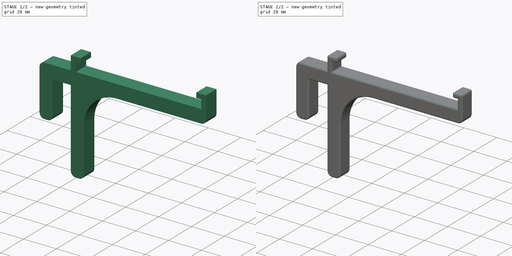
[diagram: build sequence overview — one tinted view per stage of 2, left to right]
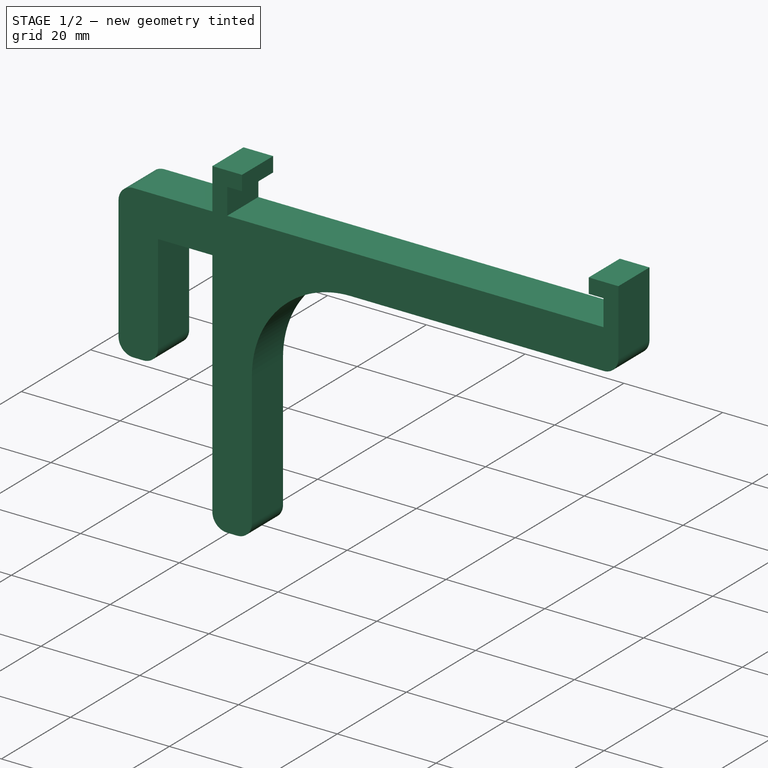
[diagram: stage 1 of 2 — iso view after this stage's code; geometry added in this stage tinted green]
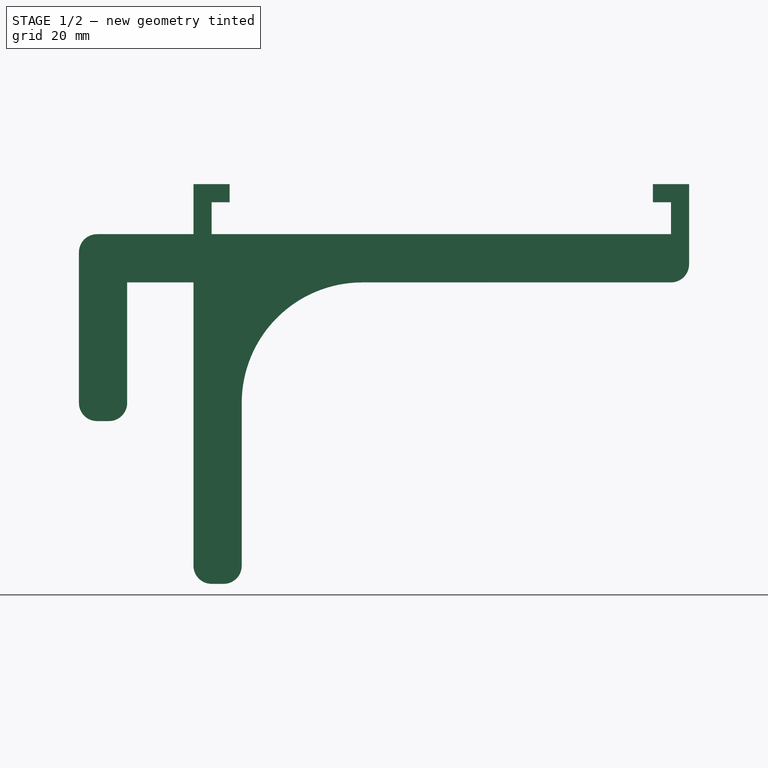
[diagram: stage 1 of 2 — front view after this stage's code; geometry added in this stage tinted green]
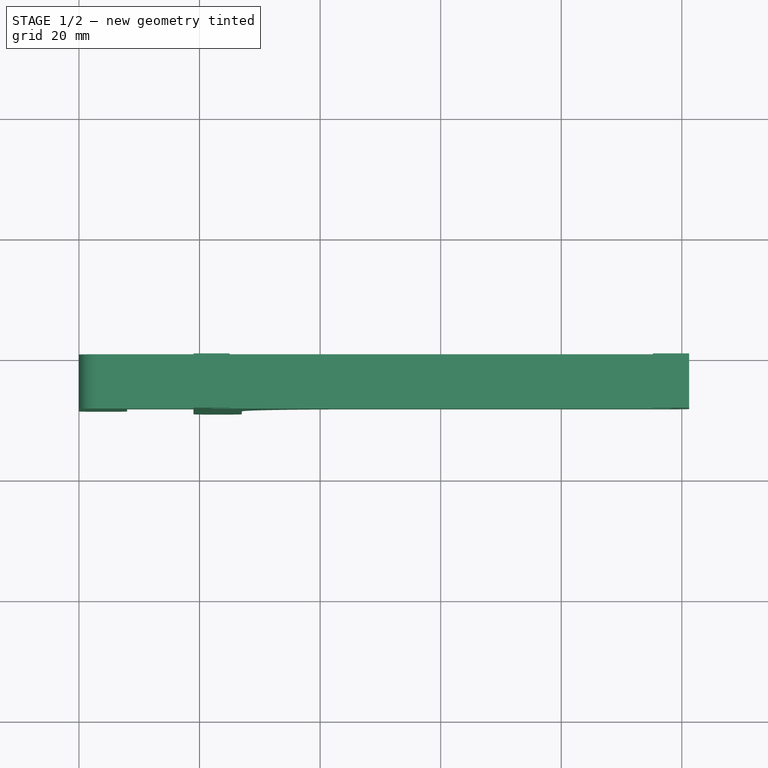
[diagram: stage 1 of 2 — top view after this stage's code; geometry added in this stage tinted green]
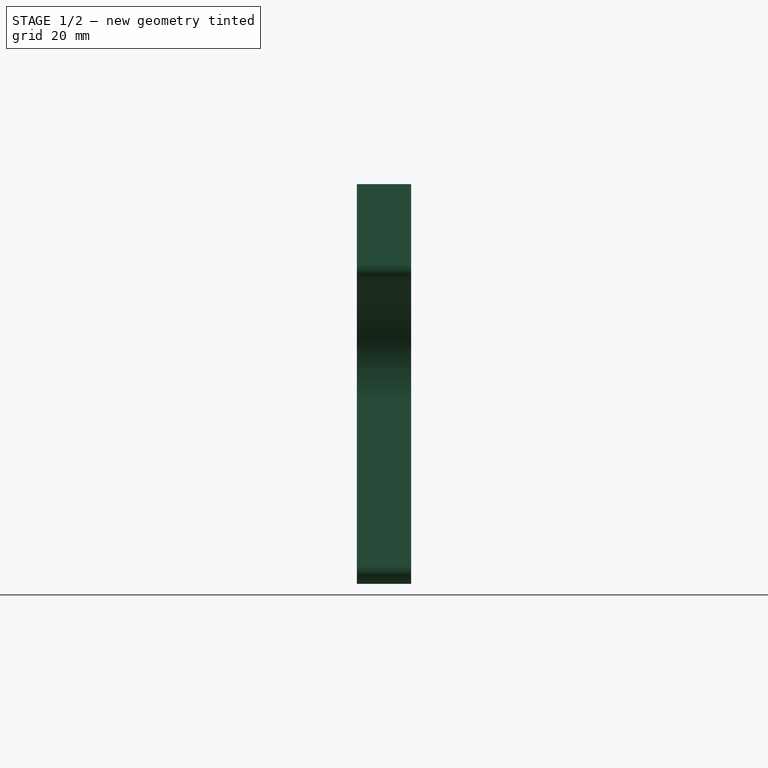
[diagram: stage 1 of 2 — right view after this stage's code; geometry added in this stage tinted green]
FCSTD DOCUMENT  (FreeCAD 0.20R29177 +426 (Git))
Label: LegoBracket1
License: All rights reserved
LicenseURL: http://en.wikipedia.org/wiki/All_rights_reserved
objects: Spreadsheet::Sheet×1, Sketcher::SketchObject×1, PartDesign::Pad×1, PartDesign::Fillet×1, PartDesign::Body×1, App::Part×1
note: 6 computed .brp shape members not serialized (recipe doc carries the construction recipe); baked Part::Feature solids carry a one-line shape summary decoded from their .brp

FEATURE [Spreadsheet::Sheet] Spreadsheet
  cells = A2=Plate height; B2(U)=5.3; A3=Depth; B3(Depth)=76.2; A4=Hook depth; B4(HookDepth)=11; A5=Offset from wall; B5(WallOffset)=0
FEATURE [Sketcher::SketchObject] Sketch
  FullyConstrained = true
  MapMode = 5
  Placement = pos=(0,0,0) rot=(1,0,0;1.5708rad)
  Support = -> [XZ_Plane001]
  expr: Constraints[35] = Spreadsheet.Depth
  expr: Constraints[37] = Spreadsheet.U
  expr: Constraints[47] = Spreadsheet.HookDepth
  expr: Constraints[86] = Spreadsheet.WallOffset
  sketch-geometry (34):
    g0: LineSegment StartX=0 StartY=-28 StartZ=0 EndX=0 EndY=-3 EndZ=0
    g1: LineSegment StartX=3 StartY=0 StartZ=0 EndX=19 EndY=0 EndZ=0
    g2: LineSegment StartX=19 StartY=0 StartZ=0 EndX=19 EndY=8.3 EndZ=0
    g3: LineSegment StartX=19 StartY=8.3 StartZ=0 EndX=25 EndY=8.3 EndZ=0
    g4: LineSegment StartX=25 StartY=8.3 StartZ=0 EndX=25 EndY=5.3 EndZ=0
    g5: LineSegment StartX=25 StartY=5.3 StartZ=0 EndX=22 EndY=5.3 EndZ=0
    g6: LineSegment StartX=22 StartY=5.3 StartZ=0 EndX=22 EndY=0 EndZ=0
    g7: LineSegment StartX=22 StartY=0 StartZ=0 EndX=98.2 EndY=0 EndZ=0
    g8: LineSegment StartX=98.2 StartY=0 StartZ=0 EndX=98.2 EndY=5.3 EndZ=0
    g9: LineSegment StartX=98.2 StartY=5.3 StartZ=0 EndX=95.2 EndY=5.3 EndZ=0
    g10: LineSegment StartX=95.2 StartY=5.3 StartZ=0 EndX=95.2 EndY=8.3 EndZ=0
    g11: LineSegment StartX=95.2 StartY=8.3 StartZ=0 EndX=101.2 EndY=8.3 EndZ=0
    g12: LineSegment StartX=101.2 StartY=8.3 StartZ=0 EndX=101.2 EndY=-5 EndZ=0
    g13: LineSegment StartX=98.2 StartY=-8 StartZ=0 EndX=47 EndY=-8 EndZ=0
    g14: LineSegment StartX=27 StartY=-28 StartZ=0 EndX=27 EndY=-55 EndZ=0
    g15: LineSegment StartX=24 StartY=-58 StartZ=0 EndX=22 EndY=-58 EndZ=0
    g16: LineSegment StartX=19 StartY=-55 StartZ=0 EndX=19 EndY=-8 EndZ=0
    g17: LineSegment StartX=19 StartY=-8 StartZ=0 EndX=8 EndY=-8 EndZ=0
    g18: LineSegment StartX=8 StartY=-8 StartZ=0 EndX=8 EndY=-28 EndZ=0
    g19: LineSegment StartX=5 StartY=-31 StartZ=0 EndX=3 EndY=-31 EndZ=0
    g20: ArcOfCircle CenterX=47 CenterY=-28 CenterZ=0 NormalX=0 NormalY=0 NormalZ=1 AngleXU=0 Radius=20 StartAngle=1.5708 EndAngle=3.14159
    g21: GeomPoint X=27 Y=-8 Z=0
    g22: GeomPoint X=101.2 Y=-8 Z=0
    g23: ArcOfCircle CenterX=3 CenterY=-28 CenterZ=0 NormalX=0 NormalY=0 NormalZ=1 AngleXU=0 Radius=3 StartAngle=3.14159 EndAngle=4.71239
    g24: GeomPoint X=0 Y=-31 Z=0
    g25: ArcOfCircle CenterX=5 CenterY=-28 CenterZ=0 NormalX=0 NormalY=0 NormalZ=1 AngleXU=0 Radius=3 StartAngle=4.71239 EndAngle=6.28319
    g26: GeomPoint X=8 Y=-31 Z=0
    g27: ArcOfCircle CenterX=22 CenterY=-55 CenterZ=0 NormalX=0 NormalY=0 NormalZ=1 AngleXU=0 Radius=3 StartAngle=3.14159 EndAngle=4.71239
    g28: GeomPoint X=19 Y=-58 Z=0
    g29: ArcOfCircle CenterX=24 CenterY=-55 CenterZ=0 NormalX=0 NormalY=0 NormalZ=1 AngleXU=0 Radius=3 StartAngle=4.71239 EndAngle=6.28319
    g30: GeomPoint X=27 Y=-58 Z=0
    g31: ArcOfCircle CenterX=98.2 CenterY=-5 CenterZ=0 NormalX=0 NormalY=0 NormalZ=1 AngleXU=0 Radius=3 StartAngle=4.71239 EndAngle=6.28319
    g32: ArcOfCircle CenterX=3 CenterY=-3 CenterZ=0 NormalX=0 NormalY=0 NormalZ=1 AngleXU=0 Radius=3 StartAngle=1.5708 EndAngle=3.14159
    g33: GeomPoint X=0 Y=0 Z=0
  constraints (87):
    c: PointOnObject(g24,g-2)
    c: Coincident(g33,g-1)
    c: Horizontal(g1)
    c: Coincident(g1,g2)
    c: Vertical(g2)
    c: Coincident(g2,g3)
    c: Horizontal(g3)
    c: Coincident(g3,g4)
    c: Vertical(g4)
    c: Coincident(g4,g5)
    c: Coincident(g5,g6)
    c: PointOnObject(g6,g-1)
    c: Vertical(g6)
    c: Coincident(g6,g7)
    c: PointOnObject(g7,g-1)
    c: Coincident(g7,g8)
    c: Vertical(g8)
    c: Coincident(g8,g9)
    c: Horizontal(g9)
    c: Coincident(g9,g10)
    c: Vertical(g10)
    c: Coincident(g10,g11)
    c: Horizontal(g11)
    c: Coincident(g11,g12)
    c: Vertical(g12)
    c: Horizontal(g13)
    c: Horizontal(g15)
    c: Vertical(g16)
    c: Coincident(g16,g17)
    c: Horizontal(g17)
    c: Coincident(g17,g18)
    c: Vertical(g18)
    c: Horizontal(g19)
    c: Horizontal(g3,g10)
    c: Horizontal(g4,g9)
    c: DistanceX(g7,g7) = 76.2
    c: Equal(g11,g3)
    c: DistanceY(g7,g8) = 5.3
    c: Horizontal(g5)
    c: DistanceY(g4,g3) = 3
    c: DistanceX(g5,g4) = 3
    c: DistanceX(g7,g11) = 3
    c: DistanceX(g28,g30) = 8
    c: DistanceX(g24,g26) = 8
    c: Horizontal(g16,g21)
    c: DistanceY(g22,g7) = 8
    c: DistanceX(g1,g6) = 3
    c: DistanceX(g17,g16) = 11
    c: DistanceY(g30,g21) = 50
    c: PointOnObject(g21,g14)
    c: PointOnObject(g21,g13)
    c: Tangent(g14,g20) = -1.5708
    c: Tangent(g13,g20) = -1.5708
    c: PointOnObject(g22,g13)
    c: PointOnObject(g22,g12)
    c: PointOnObject(g24,g0)
    c: PointOnObject(g24,g19)
    c: Tangent(g0,g23) = 1.5708
    c: Tangent(g19,g23) = 1.5708
    c: PointOnObject(g26,g19)
    c: PointOnObject(g26,g18)
    c: Tangent(g19,g25) = 1.5708
    c: Tangent(g18,g25) = 1.5708
    c: PointOnObject(g28,g16)
    c: PointOnObject(g28,g15)
    c: Tangent(g16,g27) = 1.5708
    c: Tangent(g15,g27) = 1.5708
    c: PointOnObject(g30,g15)
    c: PointOnObject(g30,g14)
    c: Tangent(g15,g29) = 1.5708
    c: Tangent(g14,g29) = 1.5708
    c: Tangent(g13,g31) = 1.5708
    c: Tangent(g12,g31) = 1.5708
    c: PointOnObject(g33,g0)
    c: PointOnObject(g33,g1)
    c: Tangent(g0,g32) = 1.5708
    c: Tangent(g1,g32) = 1.5708
    c: Radius(g23) = 3
    c: Equal(g25,g23)
    c: Equal(g29,g27)
    c: Equal(g27,g25)
    c: Equal(g23,g32)
    c: Radius(g20) = 20
    c: Equal(g32,g31)
    c: Vertical(g14)
    c: DistanceY(g26,g17) = 23
    c: DistanceX(g16,g1) = 0
FEATURE [PartDesign::Pad] Pad
  Direction = (0,-1,2e-16)
  Length = 9
  Length2 = 10
  Placement = pos=(0,0,0) rot=(1,0,0;1.5708rad)
  Profile = -> Sketch
  ReferenceAxis = -> Sketch [N_Axis]
  Type = 0
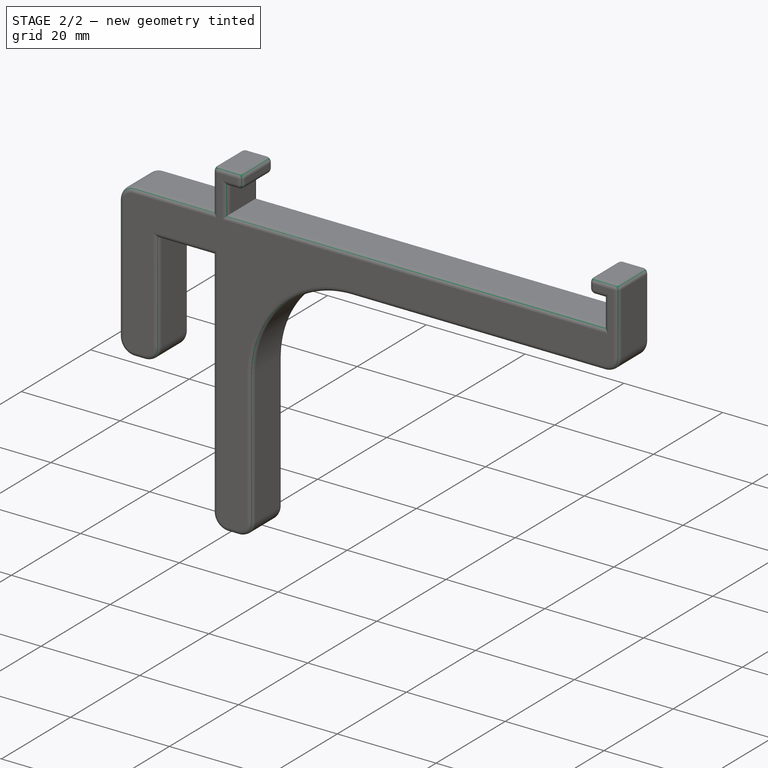
[diagram: stage 2 of 2 — iso view after this stage's code; geometry added in this stage tinted green]
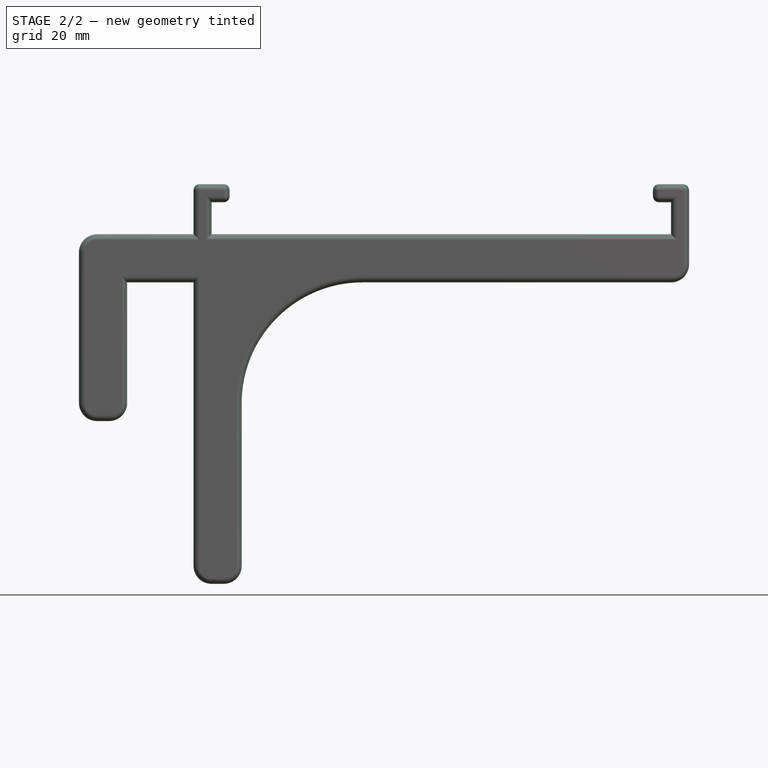
[diagram: stage 2 of 2 — front view after this stage's code; geometry added in this stage tinted green]
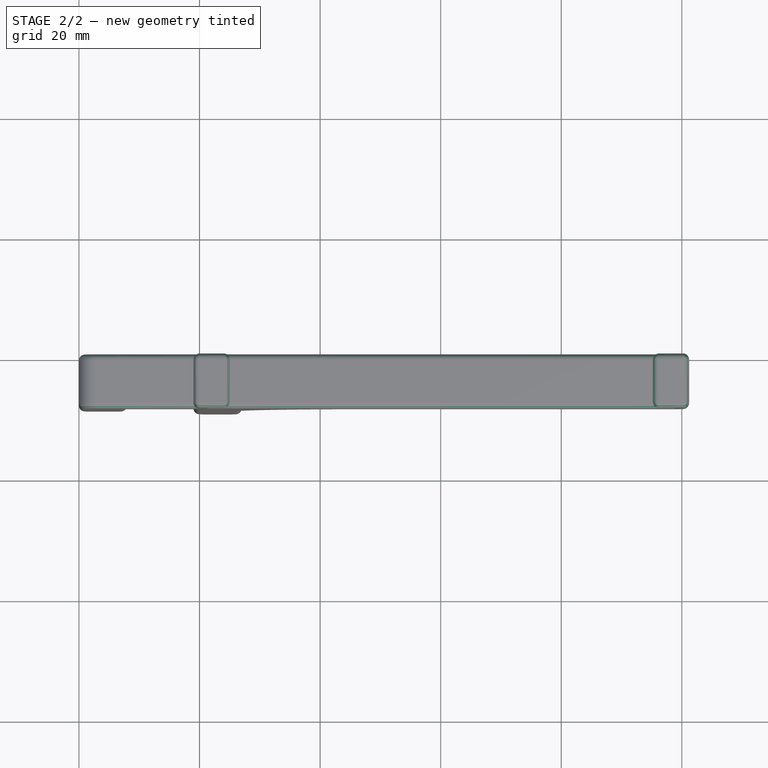
[diagram: stage 2 of 2 — top view after this stage's code; geometry added in this stage tinted green]
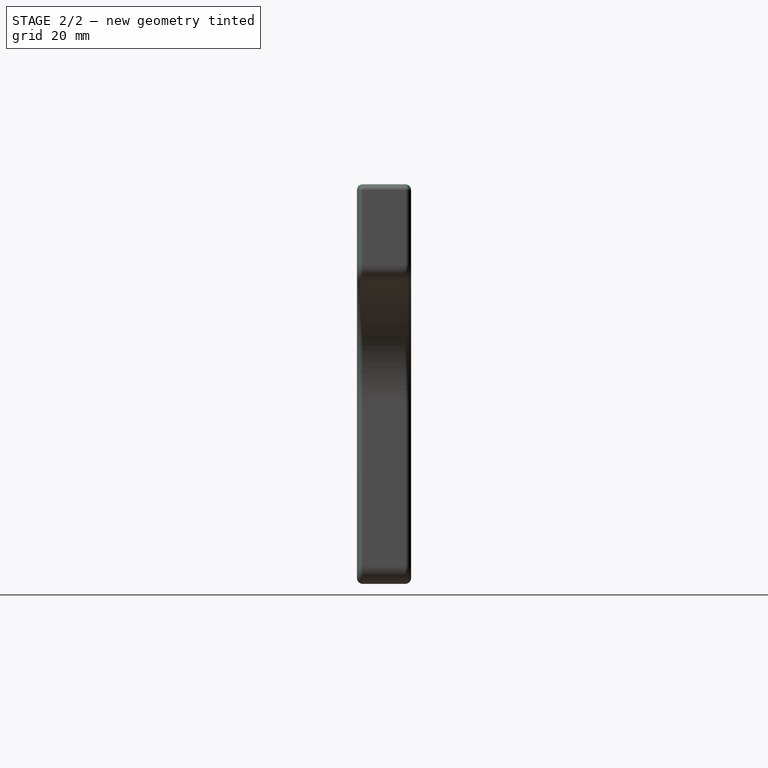
[diagram: stage 2 of 2 — right view after this stage's code; geometry added in this stage tinted green]
FEATURE [PartDesign::Fillet] Fillet
  Base = -> Pad [Face29,Face28,Edge20,Edge23,Edge17,Edge44,Edge41,Edge38]
  BaseFeature = -> Pad
  Placement = pos=(0,0,0) rot=(1,0,0;1.5708rad)
  Radius = 1
  SupportTransform = false
  UseAllEdges = false
FEATURE [PartDesign::Body] Body  label="1UBracket"
  Group = -> [Sketch,Pad,Fillet]
  Origin = -> Origin001
  Tip = -> Fillet
FEATURE [App::Part] Part  label="Bracket"
  Group = -> [Body]
  Origin = -> Origin
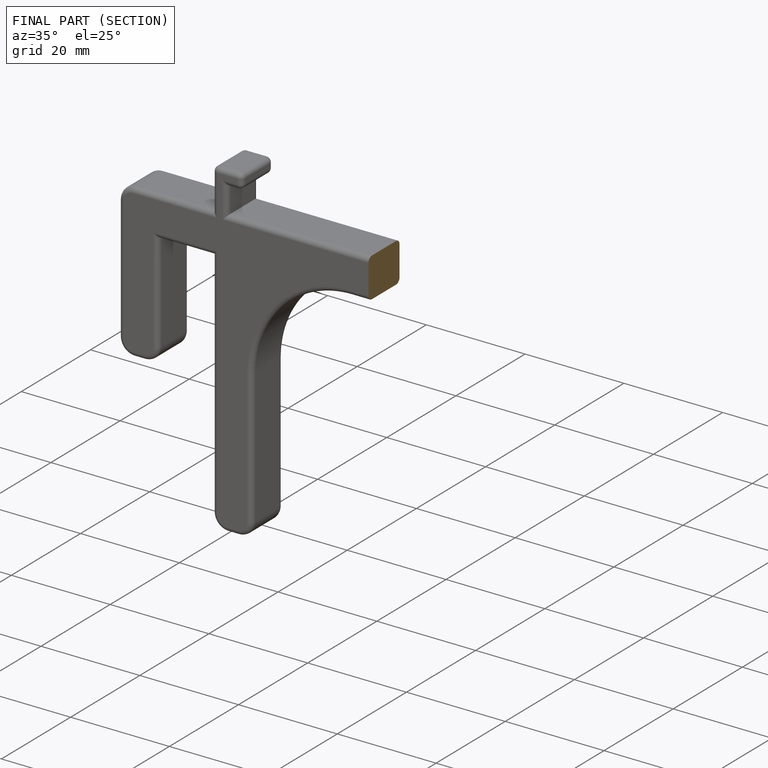
[diagram: finished part — half-section view (interior)]
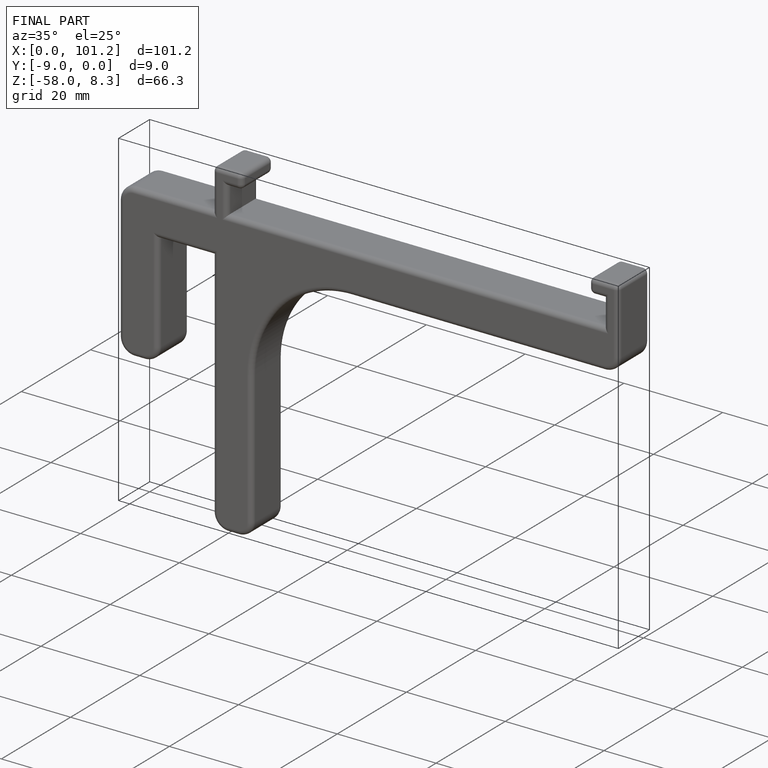
[diagram: finished part — iso view with bounding-box wireframe]
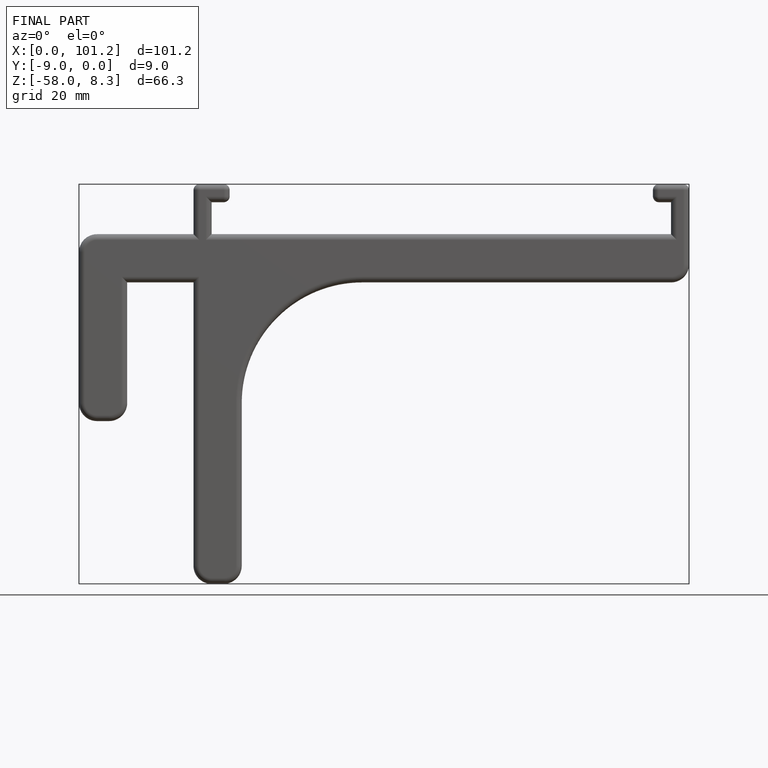
[diagram: finished part — front view with bounding-box wireframe]
